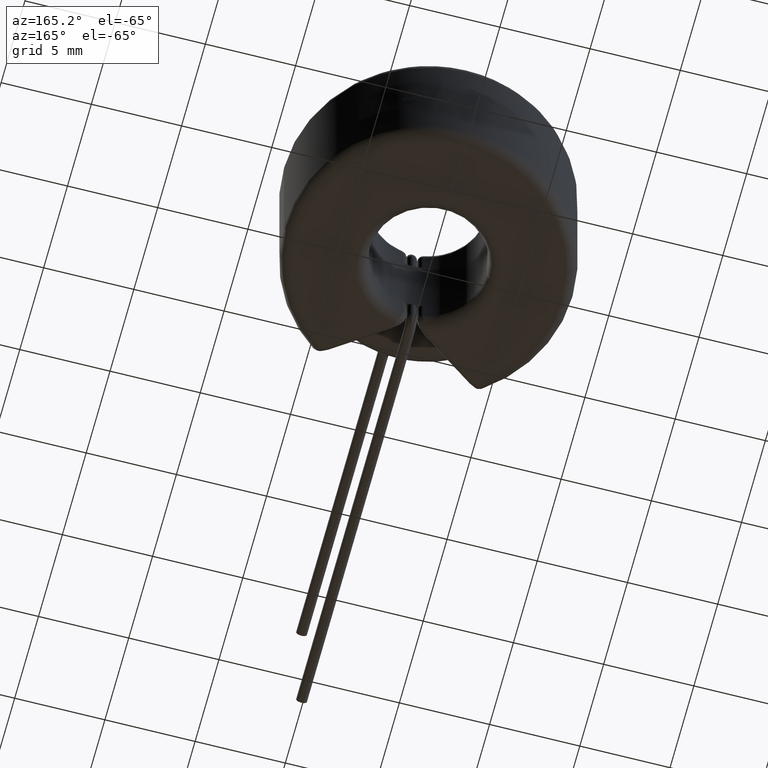
[diagram: clean part render]
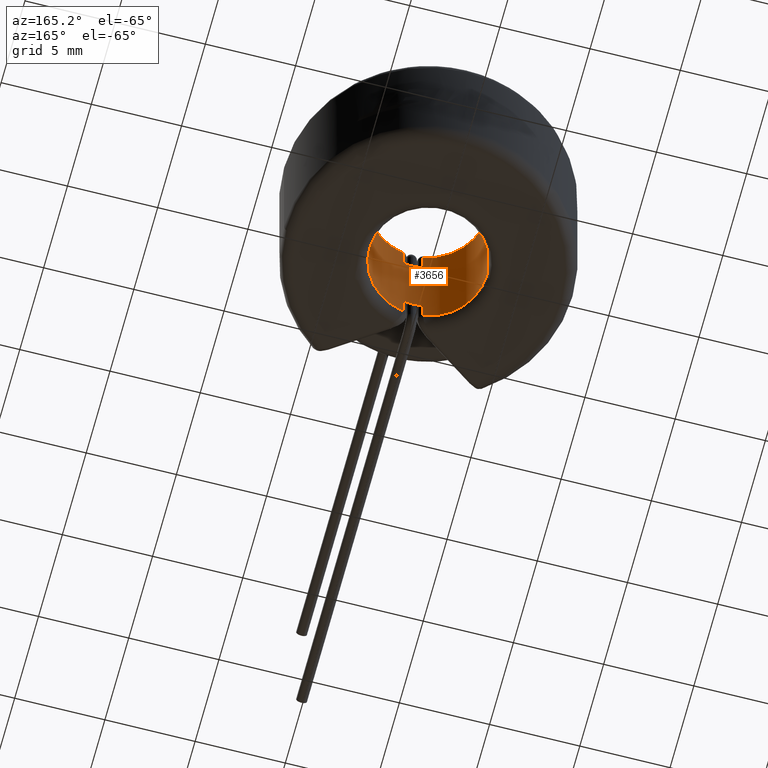
[diagram: same view with one face highlighted and labeled with its STEP entity id]
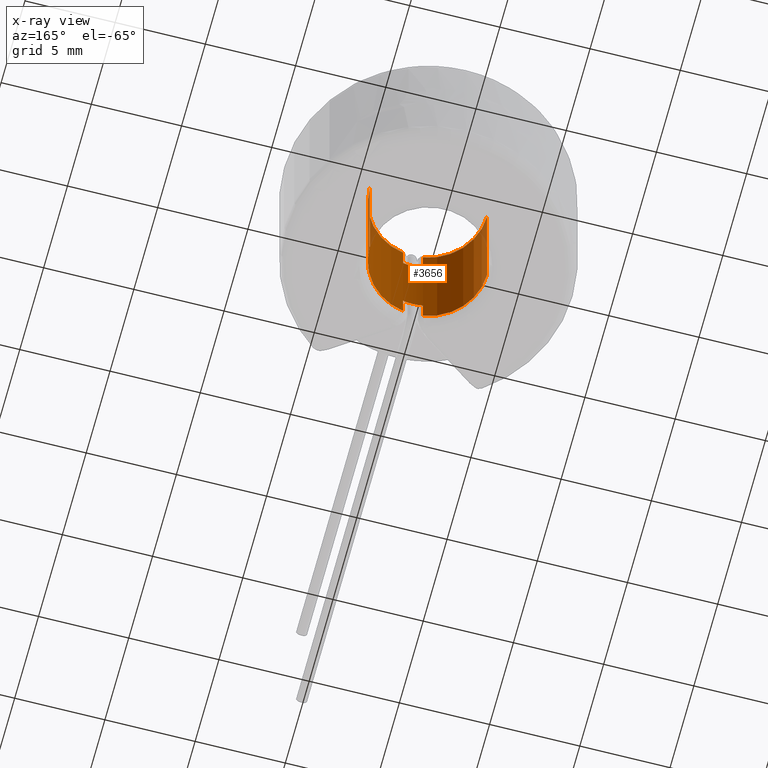
[diagram: x-ray of the same camera — body ghosted, the highlighted face saturated]
A machine part, auxiliary view. The second image highlights one B-rep face of the part: STEP entity #3656.
The next image is the same camera in x-ray: the body ghosted, the highlighted face saturated — about 4% of this face is hidden behind the body in this view.
In plain terms, the highlighted cylindrical surface (partial cylindrical patch) has radius 3.25 mm, axis along (-0, -0, -1).
Its self-contained STEP definition (entity closure, byte-faithful):
#4 = AXIS2_PLACEMENT_3D ( 'NONE', #3896, #1975, #337 ) ;
#12 = CARTESIAN_POINT ( 'NONE',  ( 0.5492957746478855929, -3.203244316619321630, -4.500000000000000000 ) ) ;
#22 = DIRECTION ( 'NONE',  ( -0.0000000000000000000, -0.0000000000000000000, -1.000000000000000000 ) ) ;
#101 = ORIENTED_EDGE ( 'NONE', *, *, #2869, .T. ) ;
#135 = EDGE_CURVE ( 'NONE', #3923, #461, #4197, .T. ) ;
#144 = ORIENTED_EDGE ( 'NONE', *, *, #693, .T. ) ;
#216 = DIRECTION ( 'NONE',  ( -0.0000000000000000000, -0.0000000000000000000, 1.000000000000000000 ) ) ;
#217 = CARTESIAN_POINT ( 'NONE',  ( -3.250000000000000444, 0.0000000000000000000, -3.699999999999999289 ) ) ;
#227 = CARTESIAN_POINT ( 'NONE',  ( 0.5492957746478855929, -3.203244316619321630, -2.399999999999999911 ) ) ;
#289 = CARTESIAN_POINT ( 'NONE',  ( -0.5492957746478877024, -3.203244316619320742, -2.399999999999999911 ) ) ;
#337 = DIRECTION ( 'NONE',  ( 1.000000000000000000, 0.0000000000000000000, 0.0000000000000000000 ) ) ;
#350 = DIRECTION ( 'NONE',  ( -0.0000000000000000000, -0.0000000000000000000, 1.000000000000000000 ) ) ;
#351 = CIRCLE ( 'NONE', #3799, 3.250000000000000444 ) ;
#389 = VECTOR ( 'NONE', #216, 1000.000000000000000 ) ;
#418 = VECTOR ( 'NONE', #2315, 1000.000000000000000 ) ;
#461 = VERTEX_POINT ( 'NONE', #3502 ) ;
#462 = DIRECTION ( 'NONE',  ( 0.0000000000000000000, 0.0000000000000000000, 1.000000000000000000 ) ) ;
#583 = CARTESIAN_POINT ( 'NONE',  ( -3.250000000000000444, 0.0000000000000000000, 2.399999999999999911 ) ) ;
#600 = ORIENTED_EDGE ( 'NONE', *, *, #135, .T. ) ;
#639 = EDGE_CURVE ( 'NONE', #1905, #3099, #1364, .T. ) ;
#667 = EDGE_LOOP ( 'NONE', ( #144, #101, #3396, #3978, #600, #3308, #2802, #1687, #1653, #3515, #1538, #710, #973, #3816 ) ) ;
#693 = EDGE_CURVE ( 'NONE', #2191, #3697, #3432, .T. ) ;
#710 = ORIENTED_EDGE ( 'NONE', *, *, #826, .F. ) ;
#757 = EDGE_CURVE ( 'NONE', #2833, #4115, #2735, .T. ) ;
#763 = FACE_OUTER_BOUND ( 'NONE', #667, .T. ) ;
#826 = EDGE_CURVE ( 'NONE', #4115, #1114, #1464, .T. ) ;
#940 = CARTESIAN_POINT ( 'NONE',  ( 0.5492957746478868142, -3.203244316619320742, 2.400000000000000355 ) ) ;
#973 = ORIENTED_EDGE ( 'NONE', *, *, #757, .F. ) ;
#995 = CARTESIAN_POINT ( 'NONE',  ( -0.5492957746478842607, -3.203244316619320298, -3.699999999999999289 ) ) ;
#1038 = CIRCLE ( 'NONE', #4, 3.250000000000000444 ) ;
#1040 = DIRECTION ( 'NONE',  ( 1.000000000000000000, 0.0000000000000000000, 0.0000000000000000000 ) ) ;
#1046 = CARTESIAN_POINT ( 'NONE',  ( 0.5492957746478855929, -3.203244316619321630, -4.500000000000000000 ) ) ;
#1114 = VERTEX_POINT ( 'NONE', #1238 ) ;
#1130 = VERTEX_POINT ( 'NONE', #289 ) ;
#1164 = EDGE_CURVE ( 'NONE', #3209, #3060, #351, .T. ) ;
#1179 = DIRECTION ( 'NONE',  ( 1.000000000000000000, 0.0000000000000000000, 0.0000000000000000000 ) ) ;
#1238 = CARTESIAN_POINT ( 'NONE',  ( -0.5492957746478877024, -3.203244316619320742, 2.400000000000000355 ) ) ;
#1243 = AXIS2_PLACEMENT_3D ( 'NONE', #3514, #3812, #1884 ) ;
#1267 = CARTESIAN_POINT ( 'NONE',  ( 3.250000000000000444, 3.980102097228898231E-16, 2.399999999999999911 ) ) ;
#1319 = LINE ( 'NONE', #3746, #1987 ) ;
#1354 = EDGE_CURVE ( 'NONE', #1114, #3294, #1319, .T. ) ;
#1364 = CIRCLE ( 'NONE', #1368, 3.250000000000000444 ) ;
#1368 = AXIS2_PLACEMENT_3D ( 'NONE', #3376, #1775, #3388 ) ;
#1381 = DIRECTION ( 'NONE',  ( 1.000000000000000000, 0.0000000000000000000, 0.0000000000000000000 ) ) ;
#1464 = CIRCLE ( 'NONE', #3106, 3.250000000000000444 ) ;
#1521 = CARTESIAN_POINT ( 'NONE',  ( -3.250000000000000444, 0.0000000000000000000, 3.699999999999999734 ) ) ;
#1532 = DIRECTION ( 'NONE',  ( 1.000000000000000000, 0.0000000000000000000, 0.0000000000000000000 ) ) ;
#1538 = ORIENTED_EDGE ( 'NONE', *, *, #1354, .F. ) ;
#1614 = EDGE_CURVE ( 'NONE', #1905, #1130, #3686, .T. ) ;
#1653 = ORIENTED_EDGE ( 'NONE', *, *, #2548, .F. ) ;
#1687 = ORIENTED_EDGE ( 'NONE', *, *, #639, .T. ) ;
#1692 = CIRCLE ( 'NONE', #2779, 3.250000000000000444 ) ;
#1706 = CARTESIAN_POINT ( 'NONE',  ( 0.5492957746478855929, -3.203244316619321630, 3.699999999999999289 ) ) ;
#1715 = CARTESIAN_POINT ( 'NONE',  ( 0.5492957746478855929, -3.203244316619321630, -3.699999999999999289 ) ) ;
#1775 = DIRECTION ( 'NONE',  ( -0.0000000000000000000, -0.0000000000000000000, -1.000000000000000000 ) ) ;
#1855 = VECTOR ( 'NONE', #2202, 1000.000000000000000 ) ;
#1857 = CARTESIAN_POINT ( 'NONE',  ( -0.5492957746478842607, -3.203244316619320298, -4.500000000000000000 ) ) ;
#1884 = DIRECTION ( 'NONE',  ( -1.000000000000000000, 0.0000000000000000000, 0.0000000000000000000 ) ) ;
#1887 = CARTESIAN_POINT ( 'NONE',  ( 3.250000000000000444, 3.980102097228898231E-16, -3.699999999999999289 ) ) ;
#1905 = VERTEX_POINT ( 'NONE', #995 ) ;
#1975 = DIRECTION ( 'NONE',  ( -0.0000000000000000000, -0.0000000000000000000, -1.000000000000000000 ) ) ;
#1987 = VECTOR ( 'NONE', #2457, 1000.000000000000000 ) ;
#2005 = LINE ( 'NONE', #1267, #1855 ) ;
#2148 = DIRECTION ( 'NONE',  ( 1.000000000000000000, 0.0000000000000000000, 0.0000000000000000000 ) ) ;
#2191 = VERTEX_POINT ( 'NONE', #1706 ) ;
#2202 = DIRECTION ( 'NONE',  ( -0.0000000000000000000, -0.0000000000000000000, -1.000000000000000000 ) ) ;
#2203 = LINE ( 'NONE', #583, #3011 ) ;
#2221 = DIRECTION ( 'NONE',  ( -0.0000000000000000000, -0.0000000000000000000, -1.000000000000000000 ) ) ;
#2238 = AXIS2_PLACEMENT_3D ( 'NONE', #2415, #462, #2384 ) ;
#2315 = DIRECTION ( 'NONE',  ( -0.0000000000000000000, -0.0000000000000000000, 1.000000000000000000 ) ) ;
#2384 = DIRECTION ( 'NONE',  ( 1.000000000000000000, 0.0000000000000000000, 0.0000000000000000000 ) ) ;
#2391 = CARTESIAN_POINT ( 'NONE',  ( 0.0000000000000000000, 0.0000000000000000000, -2.399999999999999911 ) ) ;
#2415 = CARTESIAN_POINT ( 'NONE',  ( 0.0000000000000000000, 0.0000000000000000000, 3.699999999999999734 ) ) ;
#2457 = DIRECTION ( 'NONE',  ( -0.0000000000000000000, -0.0000000000000000000, 1.000000000000000000 ) ) ;
#2500 = DIRECTION ( 'NONE',  ( 0.0000000000000000000, 0.0000000000000000000, 1.000000000000000000 ) ) ;
#2536 = AXIS2_PLACEMENT_3D ( 'NONE', #2391, #3325, #1381 ) ;
#2548 = EDGE_CURVE ( 'NONE', #3412, #3099, #2203, .T. ) ;
#2595 = EDGE_CURVE ( 'NONE', #461, #1130, #1038, .T. ) ;
#2619 = CARTESIAN_POINT ( 'NONE',  ( 0.0000000000000000000, 0.0000000000000000000, -3.699999999999999289 ) ) ;
#2625 = EDGE_CURVE ( 'NONE', #3060, #3923, #3612, .T. ) ;
#2689 = VECTOR ( 'NONE', #350, 1000.000000000000000 ) ;
#2735 = CIRCLE ( 'NONE', #4119, 3.250000000000000444 ) ;
#2779 = AXIS2_PLACEMENT_3D ( 'NONE', #3655, #2500, #2148 ) ;
#2784 = CARTESIAN_POINT ( 'NONE',  ( 0.0000000000000000000, 0.0000000000000000000, 2.399999999999999911 ) ) ;
#2789 = LINE ( 'NONE', #12, #2689 ) ;
#2802 = ORIENTED_EDGE ( 'NONE', *, *, #1614, .F. ) ;
#2827 = CARTESIAN_POINT ( 'NONE',  ( 0.0000000000000000000, 0.0000000000000000000, 2.399999999999999911 ) ) ;
#2833 = VERTEX_POINT ( 'NONE', #940 ) ;
#2869 = EDGE_CURVE ( 'NONE', #3697, #3209, #2005, .T. ) ;
#3011 = VECTOR ( 'NONE', #3850, 1000.000000000000000 ) ;
#3044 = CYLINDRICAL_SURFACE ( 'NONE', #1243, 3.250000000000000444 ) ;
#3060 = VERTEX_POINT ( 'NONE', #1715 ) ;
#3099 = VERTEX_POINT ( 'NONE', #217 ) ;
#3106 = AXIS2_PLACEMENT_3D ( 'NONE', #2827, #2221, #1532 ) ;
#3209 = VERTEX_POINT ( 'NONE', #1887 ) ;
#3230 = CARTESIAN_POINT ( 'NONE',  ( 0.0000000000000000000, -3.250000000000000444, 2.399999999999999911 ) ) ;
#3294 = VERTEX_POINT ( 'NONE', #3660 ) ;
#3308 = ORIENTED_EDGE ( 'NONE', *, *, #2595, .T. ) ;
#3325 = DIRECTION ( 'NONE',  ( -0.0000000000000000000, -0.0000000000000000000, -1.000000000000000000 ) ) ;
#3376 = CARTESIAN_POINT ( 'NONE',  ( 0.0000000000000000000, 0.0000000000000000000, -3.699999999999999289 ) ) ;
#3388 = DIRECTION ( 'NONE',  ( 1.000000000000000000, 8.881784197001252323E-16, 0.0000000000000000000 ) ) ;
#3396 = ORIENTED_EDGE ( 'NONE', *, *, #1164, .T. ) ;
#3412 = VERTEX_POINT ( 'NONE', #1521 ) ;
#3432 = CIRCLE ( 'NONE', #2238, 3.250000000000000444 ) ;
#3502 = CARTESIAN_POINT ( 'NONE',  ( 0.0000000000000000000, -3.250000000000000444, -2.399999999999999911 ) ) ;
#3514 = CARTESIAN_POINT ( 'NONE',  ( 0.0000000000000000000, 0.0000000000000000000, 2.399999999999999911 ) ) ;
#3515 = ORIENTED_EDGE ( 'NONE', *, *, #3521, .T. ) ;
#3521 = EDGE_CURVE ( 'NONE', #3412, #3294, #1692, .T. ) ;
#3532 = EDGE_CURVE ( 'NONE', #2833, #2191, #2789, .T. ) ;
#3612 = LINE ( 'NONE', #1046, #418 ) ;
#3655 = CARTESIAN_POINT ( 'NONE',  ( 0.0000000000000000000, 0.0000000000000000000, 3.699999999999999734 ) ) ;
#3656 = ADVANCED_FACE ( 'NONE', ( #763 ), #3044, .F. ) ;
#3660 = CARTESIAN_POINT ( 'NONE',  ( -0.5492957746478843717, -3.203244316619321186, 3.699999999999999734 ) ) ;
#3686 = LINE ( 'NONE', #1857, #389 ) ;
#3697 = VERTEX_POINT ( 'NONE', #4174 ) ;
#3746 = CARTESIAN_POINT ( 'NONE',  ( -0.5492957746478842607, -3.203244316619320298, -4.500000000000000000 ) ) ;
#3799 = AXIS2_PLACEMENT_3D ( 'NONE', #2619, #22, #1040 ) ;
#3812 = DIRECTION ( 'NONE',  ( -0.0000000000000000000, -0.0000000000000000000, -1.000000000000000000 ) ) ;
#3816 = ORIENTED_EDGE ( 'NONE', *, *, #3532, .T. ) ;
#3850 = DIRECTION ( 'NONE',  ( -0.0000000000000000000, -0.0000000000000000000, -1.000000000000000000 ) ) ;
#3896 = CARTESIAN_POINT ( 'NONE',  ( 0.0000000000000000000, 0.0000000000000000000, -2.399999999999999911 ) ) ;
#3923 = VERTEX_POINT ( 'NONE', #227 ) ;
#3978 = ORIENTED_EDGE ( 'NONE', *, *, #2625, .T. ) ;
#4069 = DIRECTION ( 'NONE',  ( -0.0000000000000000000, -0.0000000000000000000, -1.000000000000000000 ) ) ;
#4115 = VERTEX_POINT ( 'NONE', #3230 ) ;
#4119 = AXIS2_PLACEMENT_3D ( 'NONE', #2784, #4069, #1179 ) ;
#4174 = CARTESIAN_POINT ( 'NONE',  ( 3.250000000000000444, 3.980102097228898231E-16, 3.699999999999999734 ) ) ;
#4197 = CIRCLE ( 'NONE', #2536, 3.250000000000000444 ) ;